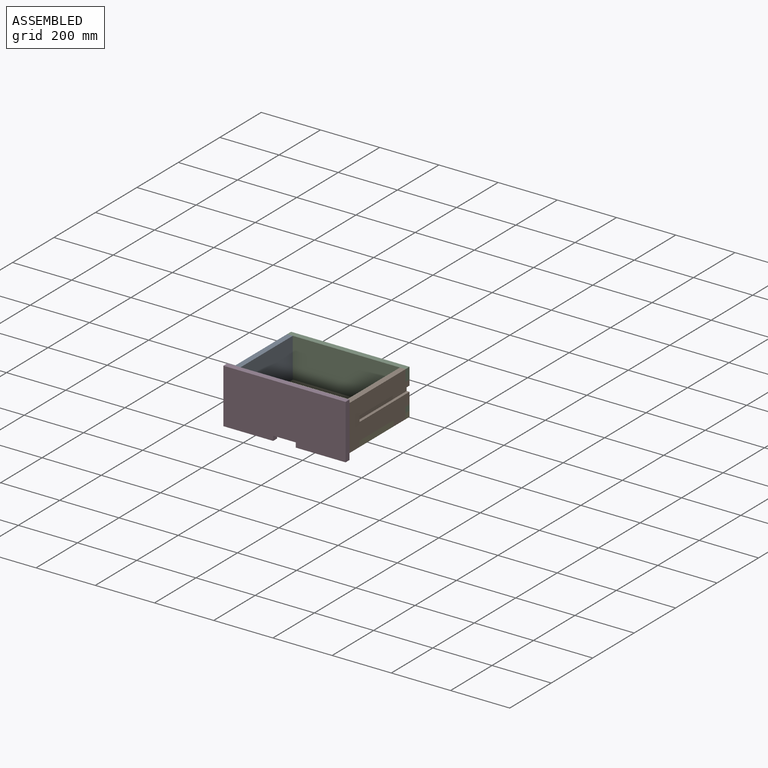
[diagram: assembled view]
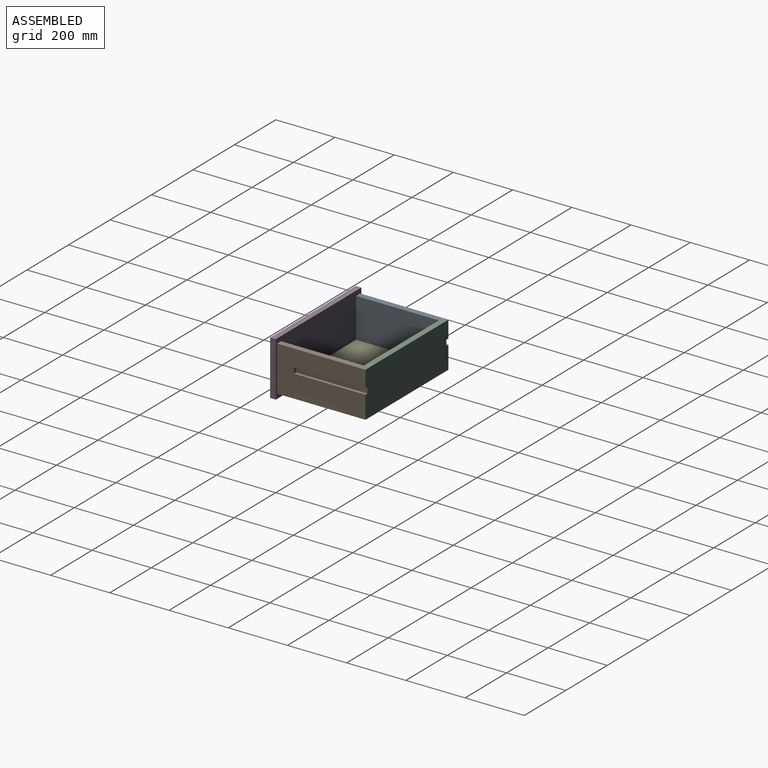
[diagram: assembled view, second angle]
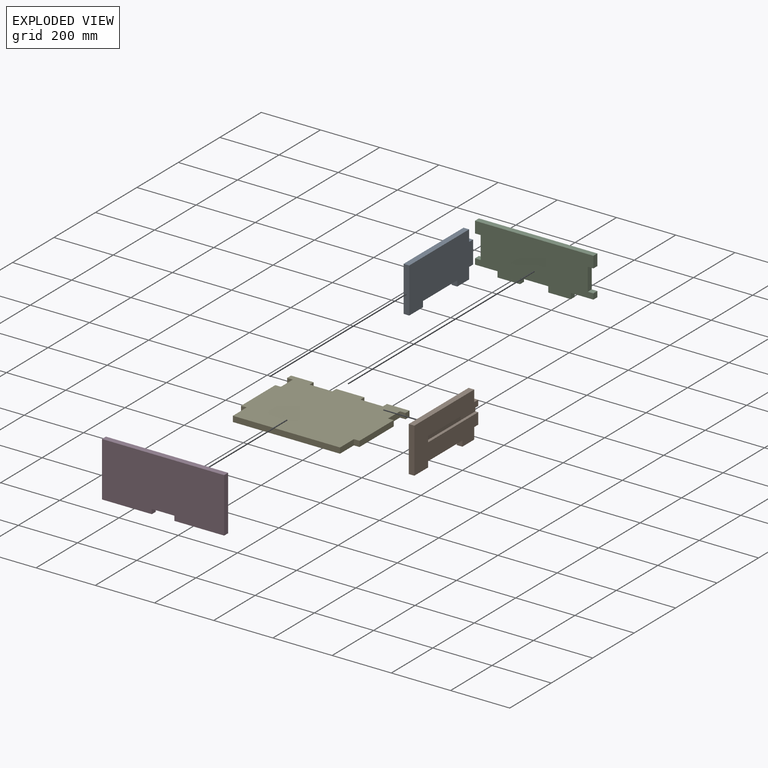
[diagram: exploded view]
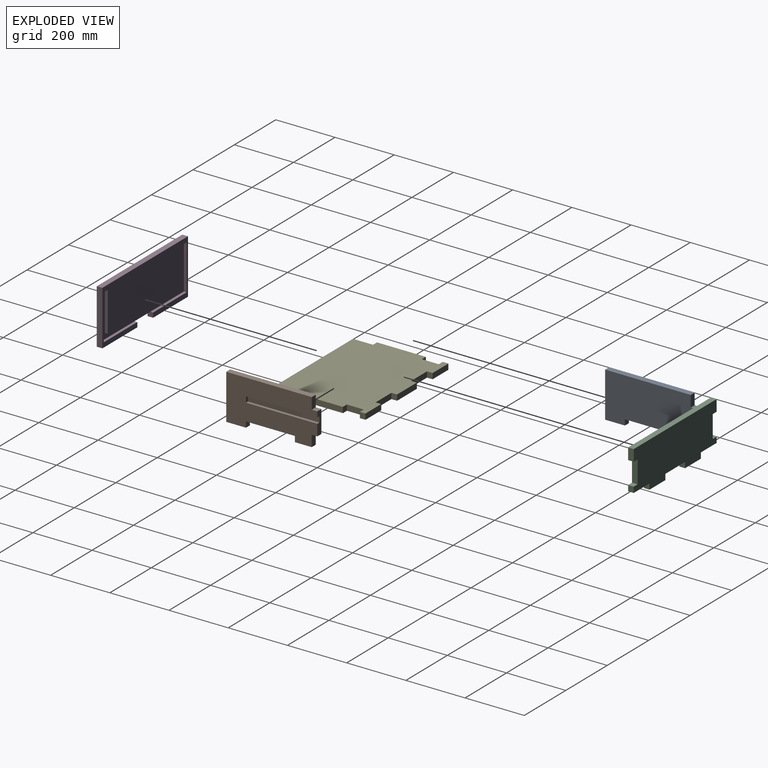
[diagram: exploded view, second angle]
ASSEMBLY  parts=5 mates=4
PART A: 18 faces, bbox 19.1x308x152.8 mm
  f0: plane 76.2x19.05mm, normal (0,1,0), area 1270.2mm2, adj f1,f11,f12,f13,f14,f16,f17
  f1: plane 19.05x19.05mm, normal (0,0,1), area 362.9mm2, adj f0,f2,f12,f13
  f2: plane 38.53x19.05mm, normal (0,1,0), area 734mm2, adj f1,f3,f12,f13
  f3: plane 288.93x19.05mm, normal (0,0,1), area 5504mm2, adj f2,f4,f12,f13
  f4: plane 152.83x19.05mm, normal (0,-1,0), area 2911.4mm2, adj f3,f5,f12,f13
  f5: plane 66.68x19.05mm, normal (0,0,-1), area 1270.2mm2, adj f4,f6,f12,f13
  f6: plane 19.05x19.05mm, normal (0,1,0), area 362.9mm2, adj f5,f7,f12,f13
  f7: plane 165.1x19.05mm, normal (0,0,-1), area 3145.2mm2, adj f6,f8,f12,f13
  f8: plane 19.05x19.05mm, normal (0,-1,0), area 362.9mm2, adj f7,f9,f12,f13
  f9: plane 57.15x19.05mm, normal (0,0,-1), area 1088.7mm2, adj f8,f10,f12,f13
  f10: plane 38.1x19.05mm, normal (0,1,0), area 725.8mm2, adj f9,f11,f12,f13
  f11: plane 19.05x19.05mm, normal (0,0,-1), area 362.9mm2, adj f0,f10,f12,f13
  f12: plane 307.98x152.83mm, normal (1,0,0), area 42463.2mm2, adj f0,f1,f2,f3,f4,f5,f6,f7
  f13: plane 307.98x152.83mm, normal (-1,0,0), area 37866.4mm2, adj f0,f1,f2,f3,f4,f5,f6,f7
  f14: plane 241.3x9.53mm, normal (0,0,-1), area 2298.4mm2, adj f0,f13,f15,f17
  f15: plane 19.05x9.53mm, normal (0,1,0), area 181.5mm2, adj f13,f14,f16,f17
  f16: plane 241.3x9.53mm, normal (0,0,1), area 2298.4mm2, adj f0,f13,f15,f17
  f17: plane 241.3x19.05mm, normal (-1,0,0), area 4596.8mm2, adj f0,f14,f15,f16
PART B: 18 faces, bbox 19.1x308x152.8 mm
  f0: plane 76.2x19.05mm, normal (0,1,0), area 1270.2mm2, adj f1,f11,f12,f13,f14,f16,f17
  f1: plane 19.05x19.05mm, normal (0,0,1), area 362.9mm2, adj f0,f2,f12,f13
  f2: plane 38.53x19.05mm, normal (0,1,0), area 734mm2, adj f1,f3,f12,f13
  f3: plane 288.93x19.05mm, normal (0,0,1), area 5504mm2, adj f2,f4,f12,f13
  f4: plane 152.83x19.05mm, normal (0,-1,0), area 2911.4mm2, adj f3,f5,f12,f13
  f5: plane 66.68x19.05mm, normal (0,0,-1), area 1270.2mm2, adj f4,f6,f12,f13
  f6: plane 19.05x19.05mm, normal (0,1,0), area 362.9mm2, adj f5,f7,f12,f13
  f7: plane 165.1x19.05mm, normal (0,0,-1), area 3145.2mm2, adj f6,f8,f12,f13
  f8: plane 19.05x19.05mm, normal (0,-1,0), area 362.9mm2, adj f7,f9,f12,f13
  f9: plane 57.15x19.05mm, normal (0,0,-1), area 1088.7mm2, adj f8,f10,f12,f13
  f10: plane 38.1x19.05mm, normal (0,1,0), area 725.8mm2, adj f9,f11,f12,f13
  f11: plane 19.05x19.05mm, normal (0,0,-1), area 362.9mm2, adj f0,f10,f12,f13
  f12: plane 307.98x152.83mm, normal (-1,0,0), area 42463.2mm2, adj f0,f1,f2,f3,f4,f5,f6,f7
  f13: plane 307.98x152.83mm, normal (1,0,0), area 37866.4mm2, adj f0,f1,f2,f3,f4,f5,f6,f7
  f14: plane 241.3x9.53mm, normal (0,0,-1), area 2298.4mm2, adj f0,f13,f15,f17
  f15: plane 19.05x9.53mm, normal (0,1,0), area 181.5mm2, adj f13,f14,f16,f17
  f16: plane 241.3x9.53mm, normal (0,0,1), area 2298.4mm2, adj f0,f13,f15,f17
  f17: plane 241.3x19.05mm, normal (1,0,0), area 4596.8mm2, adj f0,f14,f15,f16
PART C: 22 faces, bbox 400.1x19.1x152.8 mm
  f0: plane 19.05x19.05mm, normal (-1,0,0), area 362.9mm2, adj f5,f6,f12,f20
  f1: plane 38.53x19.05mm, normal (1,0,0), area 734mm2, adj f5,f6,f7,f16
  f2: plane 19.05x19.05mm, normal (1,0,0), area 362.9mm2, adj f5,f6,f14,f17
  f3: plane 76.2x19.05mm, normal (0,0,-1), area 1451.6mm2, adj f5,f6,f11,f13
  f4: plane 76.2x19.05mm, normal (0,0,-1), area 1451.6mm2, adj f5,f6,f10,f15
  f5: plane 400.05x152.83mm, normal (0,1,0), area 53519.2mm2, adj f0,f1,f2,f3,f4,f7,f8,f9
  f6: plane 400.05x152.83mm, normal (0,-1,0), area 53519.2mm2, adj f0,f1,f2,f3,f4,f7,f8,f9
  f7: plane 400.05x19.05mm, normal (0,0,1), area 7621mm2, adj f1,f5,f6,f8
  f8: plane 38.53x19.05mm, normal (-1,0,0), area 734mm2, adj f5,f6,f7,f19
  f9: plane 95.25x19.05mm, normal (0,0,-1), area 1814.5mm2, adj f5,f6,f10,f11
  f10: plane 19.05x19.05mm, normal (-1,0,0), area 362.9mm2, adj f4,f5,f6,f9
  f11: plane 19.05x19.05mm, normal (1,0,0), area 362.9mm2, adj f3,f5,f6,f9
  f12: plane 76.2x19.05mm, normal (0,0,-1), area 1451.6mm2, adj f0,f5,f6,f13
  f13: plane 19.05x19.05mm, normal (-1,0,0), area 362.9mm2, adj f3,f5,f6,f12
  f14: plane 76.2x19.05mm, normal (0,0,-1), area 1451.6mm2, adj f2,f5,f6,f15
  f15: plane 19.05x19.05mm, normal (1,0,0), area 362.9mm2, adj f4,f5,f6,f14
  f16: plane 19.05x19.05mm, normal (0,0,-1), area 362.9mm2, adj f1,f5,f6,f18
  f17: plane 19.05x19.05mm, normal (0,0,1), area 362.9mm2, adj f2,f5,f6,f18
  f18: plane 76.2x19.05mm, normal (1,0,0), area 1451.6mm2, adj f5,f6,f16,f17
  f19: plane 19.05x19.05mm, normal (0,0,-1), area 362.9mm2, adj f5,f6,f8,f21
  f20: plane 19.05x19.05mm, normal (0,0,1), area 362.9mm2, adj f0,f5,f6,f21
  f21: plane 76.2x19.05mm, normal (-1,0,0), area 1451.6mm2, adj f5,f6,f19,f20
PART D: 20 faces, bbox 412.8x19.1x184.6 mm
  f0: plane 161.93x9.53mm, normal (0,0,1), area 1542.3mm2, adj f3,f10,f16,f19
  f1: plane 168.28x19.05mm, normal (0,0,-1), area 3205.6mm2, adj f2,f3,f5,f18
  f2: plane 184.58x19.05mm, normal (-1,0,0), area 3516.3mm2, adj f1,f3,f4,f5
  f3: plane 412.75x184.58mm, normal (0,1,0), area 62258.2mm2, adj f0,f1,f2,f4,f6,f7,f8,f9
  f4: plane 412.75x19.05mm, normal (0,0,1), area 7862.9mm2, adj f2,f3,f5,f7
  f5: plane 412.75x184.58mm, normal (0,-1,0), area 74976.2mm2, adj f1,f2,f4,f6,f7,f17,f18,f19
  f6: plane 168.28x19.05mm, normal (0,0,-1), area 3205.6mm2, adj f3,f5,f7,f19
  f7: plane 184.58x19.05mm, normal (1,0,0), area 3516.3mm2, adj f3,f4,f5,f6
  f8: plane 361.95x9.53mm, normal (0,0,-1), area 3447.6mm2, adj f3,f13,f15,f16
  f9: plane 152.83x9.53mm, normal (1,0,0), area 1455.7mm2, adj f3,f11,f12,f16
  f10: plane 152.83x9.53mm, normal (-1,0,0), area 1455.7mm2, adj f0,f3,f14,f16
  f11: plane 161.93x9.53mm, normal (0,0,1), area 1542.3mm2, adj f3,f9,f16,f18
  f12: plane 19.05x9.53mm, normal (0,0,-1), area 181.5mm2, adj f3,f9,f13,f16
  f13: plane 133.78x9.53mm, normal (-1,0,0), area 1274.3mm2, adj f3,f8,f12,f16
  f14: plane 19.05x9.53mm, normal (0,0,-1), area 181.5mm2, adj f3,f10,f15,f16
  f15: plane 133.78x9.53mm, normal (1,0,0), area 1274.3mm2, adj f3,f8,f14,f16
  f16: plane 400.05x152.83mm, normal (0,1,0), area 12718mm2, adj f0,f8,f9,f10,f11,f12,f13,f14
  f17: plane 76.2x9.53mm, normal (0,0,-1), area 725.8mm2, adj f5,f16,f18,f19
  f18: plane 19.05x15.88mm, normal (1,0,0), area 302.4mm2, adj f1,f3,f5,f11,f17
  f19: plane 19.05x15.88mm, normal (-1,0,0), area 302.4mm2, adj f0,f3,f5,f6,f17
PART E: 26 faces, bbox 400.1x308x19.1 mm
  f0: plane 19.05x19.05mm, normal (-1,0,0), area 362.9mm2, adj f5,f6,f7,f25
  f1: plane 165.1x19.05mm, normal (-1,0,0), area 3145.2mm2, adj f5,f6,f22,f24
  f2: plane 165.1x19.05mm, normal (1,0,0), area 3145.2mm2, adj f5,f6,f18,f20
  f3: plane 19.05x19.05mm, normal (1,0,0), area 362.9mm2, adj f5,f6,f9,f17
  f4: plane 361.95x19.05mm, normal (0,-1,0), area 6895.1mm2, adj f5,f6,f19,f21
  f5: plane 400.05x307.98mm, normal (0,0,-1), area 115584.4mm2, adj f0,f1,f2,f3,f4,f7,f8,f9
  f6: plane 400.05x307.98mm, normal (0,0,1), area 115584.4mm2, adj f0,f1,f2,f3,f4,f7,f8,f9
  f7: plane 76.2x19.05mm, normal (0,1,0), area 1451.6mm2, adj f0,f5,f6,f13
  f8: plane 95.25x19.05mm, normal (0,1,0), area 1814.5mm2, adj f5,f6,f10,f15
  f9: plane 76.2x19.05mm, normal (0,1,0), area 1451.6mm2, adj f3,f5,f6,f12
  f10: plane 19.05x19.05mm, normal (1,0,0), area 362.9mm2, adj f5,f6,f8,f11
  f11: plane 76.2x19.05mm, normal (0,1,0), area 1451.6mm2, adj f5,f6,f10,f12
  f12: plane 19.05x19.05mm, normal (-1,0,0), area 362.9mm2, adj f5,f6,f9,f11
  f13: plane 19.05x19.05mm, normal (1,0,0), area 362.9mm2, adj f5,f6,f7,f14
  f14: plane 76.2x19.05mm, normal (0,1,0), area 1451.6mm2, adj f5,f6,f13,f15
  f15: plane 19.05x19.05mm, normal (-1,0,0), area 362.9mm2, adj f5,f6,f8,f14
  f16: plane 57.15x19.05mm, normal (1,0,0), area 1088.7mm2, adj f5,f6,f17,f18
  f17: plane 19.05x19.05mm, normal (0,-1,0), area 362.9mm2, adj f3,f5,f6,f16
  f18: plane 19.05x19.05mm, normal (0,1,0), area 362.9mm2, adj f2,f5,f6,f16
  f19: plane 66.68x19.05mm, normal (1,0,0), area 1270.2mm2, adj f4,f5,f6,f20
  f20: plane 19.05x19.05mm, normal (0,-1,0), area 362.9mm2, adj f2,f5,f6,f19
  f21: plane 66.68x19.05mm, normal (-1,0,0), area 1270.2mm2, adj f4,f5,f6,f22
  f22: plane 19.05x19.05mm, normal (0,-1,0), area 362.9mm2, adj f1,f5,f6,f21
  f23: plane 57.15x19.05mm, normal (-1,0,0), area 1088.7mm2, adj f5,f6,f24,f25
  f24: plane 19.05x19.05mm, normal (0,1,0), area 362.9mm2, adj f1,f5,f6,f23
  f25: plane 19.05x19.05mm, normal (0,-1,0), area 362.9mm2, adj f0,f5,f6,f23
PLACE A t=(537.81,-357.64,452.98)mm
PLACE B t=(537.81,-357.64,452.98)mm
PLACE C t=(537.81,-357.64,452.98)mm
PLACE D t=(537.81,-357.64,452.98)mm fixed
PLACE E t=(537.81,-357.64,452.98)mm
MATE fastened C.f6 <-> E.f14  axis (0,-1,0) through (223.49,-59.19,973.25)mm
MATE fastened B.f4 <-> D.f16  axis (0,-1,0) through (509.24,-348.11,1126.08)mm
MATE fastened A.f4 <-> D.f16  axis (0,-1,0) through (109.19,-348.11,1126.08)mm
MATE fastened E.f4 <-> D.f16  axis (0,-1,0) through (309.21,-348.11,992.3)mm
